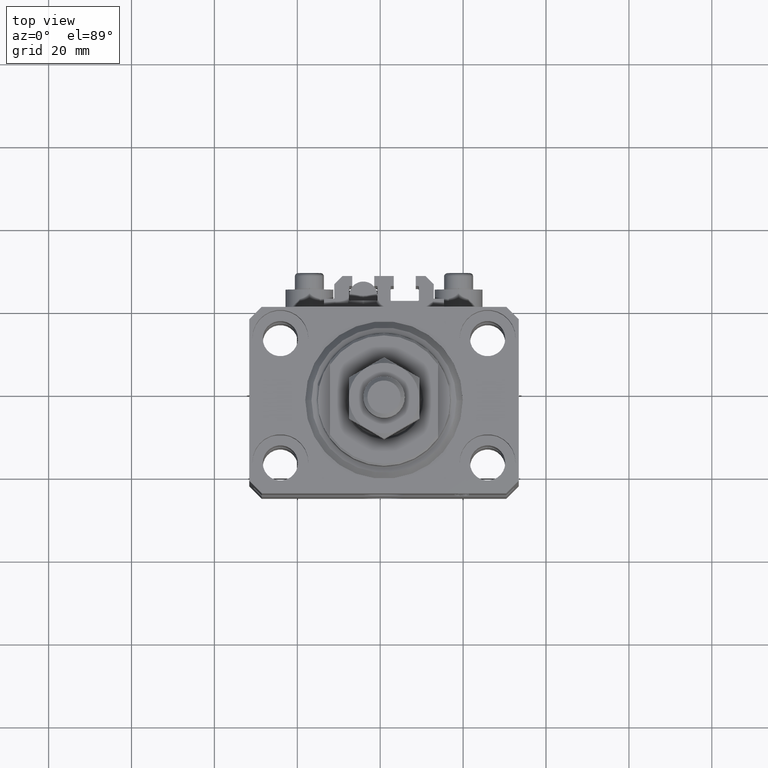
[diagram: clean part render]
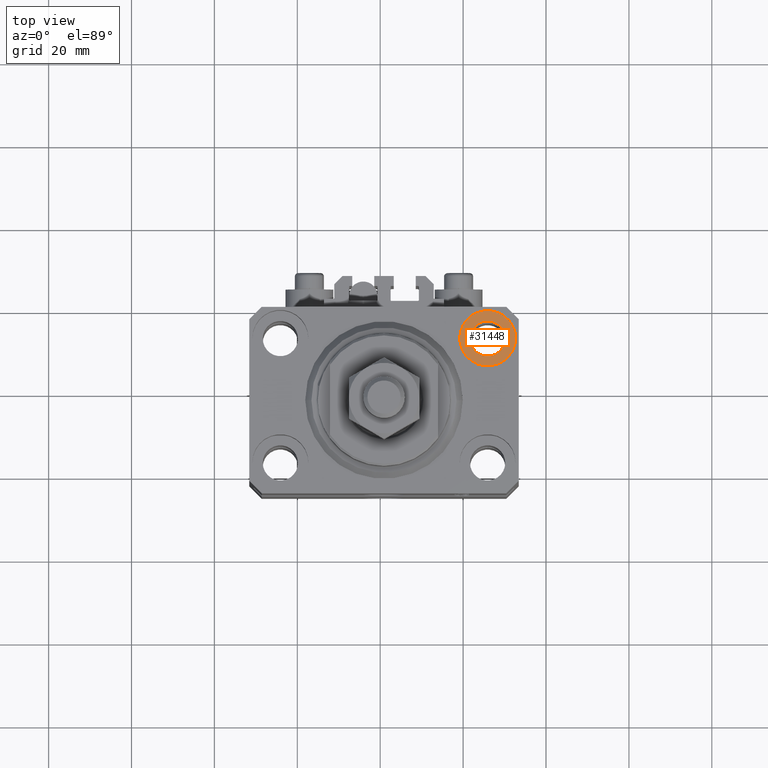
[diagram: same view with one face highlighted and labeled with its STEP entity id]
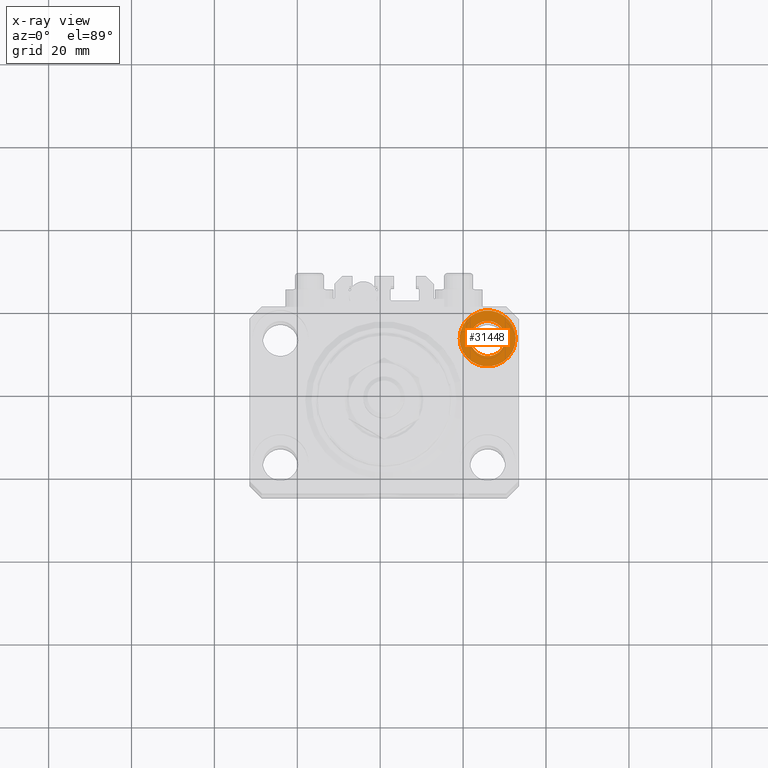
[diagram: x-ray of the same camera — body ghosted, the highlighted face saturated]
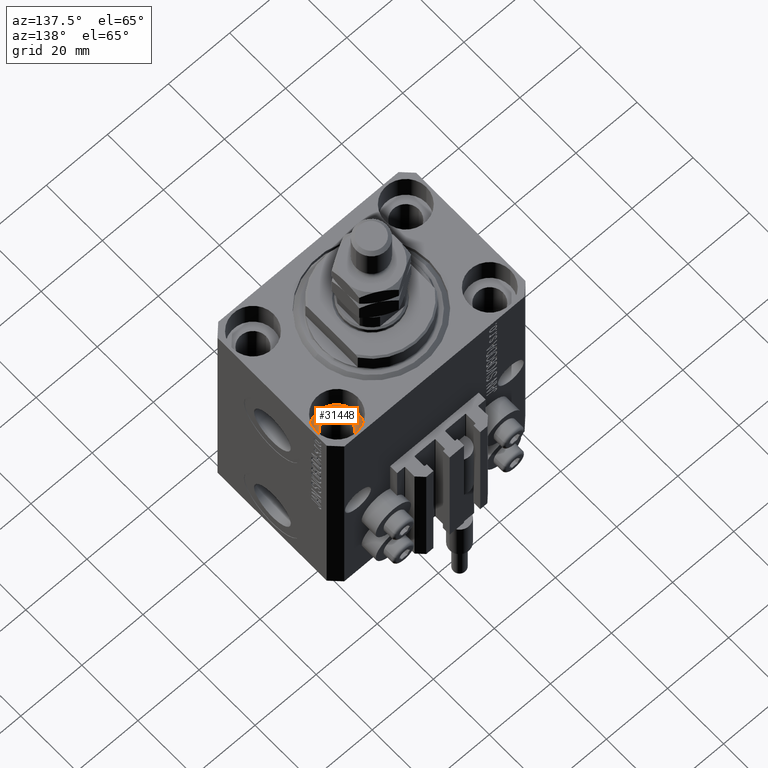
[diagram: same view with one face highlighted and labeled with its STEP entity id]
A machine part, top view. The second image highlights one B-rep face of the part: STEP entity #31448.
The next image is the same camera in x-ray: the body ghosted, the highlighted face saturated — about 0% of this face is hidden behind the body in this view.
A second angle (auxiliary view) of the same face is appended — the face is thin or edge-on in the first view.
In plain terms, the highlighted planar face has unit normal (0, 0, 1).
Its self-contained STEP definition (entity closure, byte-faithful):
#646 = EDGE_CURVE ( 'NONE', #26435, #5465, #25524, .T. ) ;
#969 = VERTEX_POINT ( 'NONE', #49508 ) ;
#1002 = ORIENTED_EDGE ( 'NONE', *, *, #10339, .F. ) ;
#1201 = EDGE_LOOP ( 'NONE', ( #8203, #19796 ) ) ;
#4410 = ORIENTED_EDGE ( 'NONE', *, *, #30277, .F. ) ;
#4505 = CIRCLE ( 'NONE', #30937, 6.749999999958452790 ) ;
#5465 = VERTEX_POINT ( 'NONE', #35828 ) ;
#8203 = ORIENTED_EDGE ( 'NONE', *, *, #646, .T. ) ;
#8401 = DIRECTION ( 'NONE',  ( 1.000000000000000000, 0.000000000000000000, 0.000000000000000000 ) ) ;
#8899 = EDGE_LOOP ( 'NONE', ( #1002, #4410 ) ) ;
#10339 = EDGE_CURVE ( 'NONE', #969, #17155, #44871, .T. ) ;
#11088 = DIRECTION ( 'NONE',  ( 0.000000000000000000, 0.000000000000000000, 1.000000000000000000 ) ) ;
#11762 = EDGE_CURVE ( 'NONE', #5465, #26435, #4505, .T. ) ;
#11855 = FACE_OUTER_BOUND ( 'NONE', #1201, .T. ) ;
#14669 = CARTESIAN_POINT ( 'NONE',  ( 24.99999999999999645, 15.00000000000000888, -9.000000000000000000 ) ) ;
#16087 = AXIS2_PLACEMENT_3D ( 'NONE', #42718, #47238, #8401 ) ;
#17155 = VERTEX_POINT ( 'NONE', #20090 ) ;
#19344 = DIRECTION ( 'NONE',  ( 0.000000000000000000, 0.000000000000000000, 1.000000000000000000 ) ) ;
#19796 = ORIENTED_EDGE ( 'NONE', *, *, #11762, .T. ) ;
#19861 = CARTESIAN_POINT ( 'NONE',  ( 24.99999999999999645, 15.00000000000000888, -9.000000000000000000 ) ) ;
#20090 = CARTESIAN_POINT ( 'NONE',  ( 20.75000000004154899, 15.00000000000000888, -9.000000000000000000 ) ) ;
#22571 = DIRECTION ( 'NONE',  ( 0.000000000000000000, 0.000000000000000000, 1.000000000000000000 ) ) ;
#23073 = DIRECTION ( 'NONE',  ( 1.000000000000000000, 0.000000000000000000, 0.000000000000000000 ) ) ;
#23106 = AXIS2_PLACEMENT_3D ( 'NONE', #26339, #22571, #23073 ) ;
#23112 = DIRECTION ( 'NONE',  ( 1.000000000000000000, 0.000000000000000000, 0.000000000000000000 ) ) ;
#23677 = CARTESIAN_POINT ( 'NONE',  ( 31.74999999995845101, 15.00000000000000888, -9.000000000000000000 ) ) ;
#25524 = CIRCLE ( 'NONE', #23106, 6.749999999958452790 ) ;
#26339 = CARTESIAN_POINT ( 'NONE',  ( 24.99999999999999645, 15.00000000000000888, -9.000000000000000000 ) ) ;
#26435 = VERTEX_POINT ( 'NONE', #23677 ) ;
#29975 = DIRECTION ( 'NONE',  ( 0.000000000000000000, 0.000000000000000000, 1.000000000000000000 ) ) ;
#30277 = EDGE_CURVE ( 'NONE', #17155, #969, #46845, .T. ) ;
#30411 = DIRECTION ( 'NONE',  ( 1.000000000000000000, 0.000000000000000000, -0.000000000000000000 ) ) ;
#30937 = AXIS2_PLACEMENT_3D ( 'NONE', #14669, #29975, #49249 ) ;
#31448 = ADVANCED_FACE ( 'NONE', ( #46436, #11855 ), #42427, .T. ) ;
#33245 = AXIS2_PLACEMENT_3D ( 'NONE', #34397, #19344, #23112 ) ;
#34397 = CARTESIAN_POINT ( 'NONE',  ( 24.99999999999999645, 15.00000000000000888, -9.000000000000000000 ) ) ;
#35828 = CARTESIAN_POINT ( 'NONE',  ( 18.25000000004154543, 15.00000000000000888, -9.000000000000000000 ) ) ;
#42427 = PLANE ( 'NONE',  #46075 ) ;
#42718 = CARTESIAN_POINT ( 'NONE',  ( 24.99999999999999645, 15.00000000000000888, -9.000000000000000000 ) ) ;
#44871 = CIRCLE ( 'NONE', #16087, 4.249999999958450125 ) ;
#46075 = AXIS2_PLACEMENT_3D ( 'NONE', #19861, #11088, #30411 ) ;
#46436 = FACE_BOUND ( 'NONE', #8899, .T. ) ;
#46845 = CIRCLE ( 'NONE', #33245, 4.249999999958450125 ) ;
#47238 = DIRECTION ( 'NONE',  ( 0.000000000000000000, 0.000000000000000000, 1.000000000000000000 ) ) ;
#49249 = DIRECTION ( 'NONE',  ( 1.000000000000000000, 0.000000000000000000, 0.000000000000000000 ) ) ;
#49508 = CARTESIAN_POINT ( 'NONE',  ( 29.24999999995844746, 15.00000000000000888, -9.000000000000000000 ) ) ;